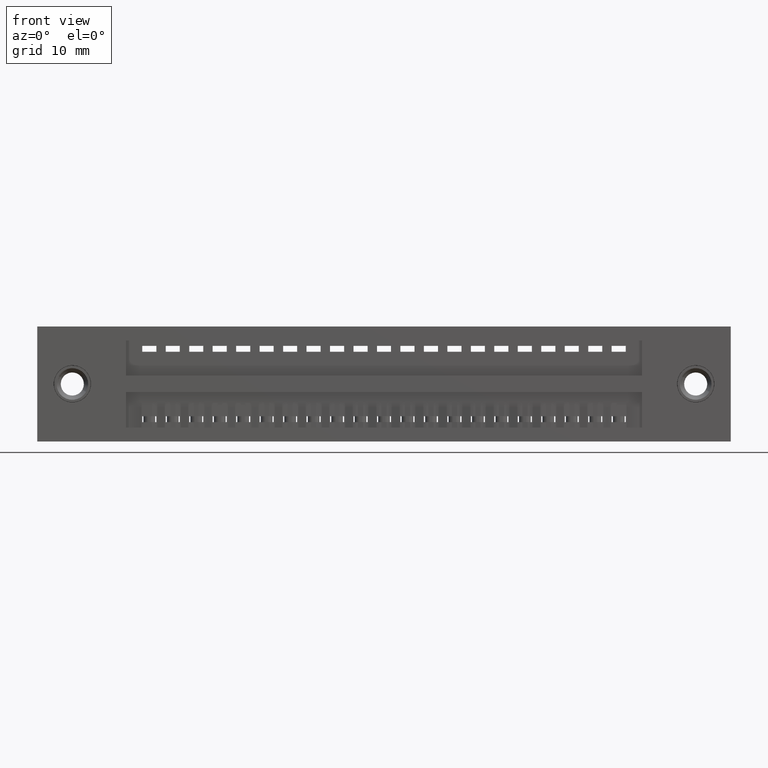
[diagram: clean part render]
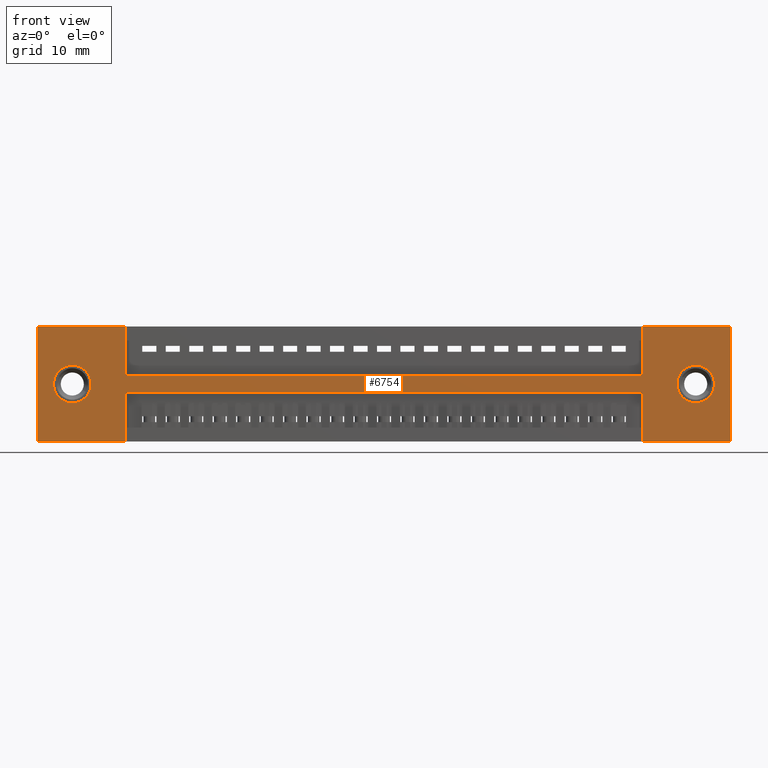
[diagram: same view with one face highlighted and labeled with its STEP entity id]
A machine part, front view. The second image highlights one B-rep face of the part: STEP entity #6754.
In plain terms, the highlighted planar face has unit normal (0, -1, 0).
Its self-contained STEP definition (entity closure, byte-faithful):
#55 = VECTOR ( 'NONE', #1335, 39.37007874015748100 ) ;
#319 = CARTESIAN_POINT ( 'NONE',  ( 0.1495000000000000500, 0.0000000000000000000, -0.1650000000000000100 ) ) ;
#337 = EDGE_CURVE ( 'NONE', #16049, #4936, #15626, .T. ) ;
#561 = DIRECTION ( 'NONE',  ( 0.0000000000000000000, 0.0000000000000000000, -1.000000000000000000 ) ) ;
#942 = CARTESIAN_POINT ( 'NONE',  ( 2.577500000000000100, 0.0000000000000000000, -0.2100000000000002100 ) ) ;
#1154 = EDGE_LOOP ( 'NONE', ( #16328, #10938 ) ) ;
#1239 = CARTESIAN_POINT ( 'NONE',  ( 0.0000000000000000000, 0.0000000000000000000, 0.0000000000000000000 ) ) ;
#1335 = DIRECTION ( 'NONE',  ( 0.0000000000000000000, 0.0000000000000000000, -1.000000000000000000 ) ) ;
#1450 = CARTESIAN_POINT ( 'NONE',  ( 0.1495000000000000500, 0.0000000000000000000, -0.2450000000000000000 ) ) ;
#1684 = VECTOR ( 'NONE', #11710, 39.37007874015748100 ) ;
#1851 = VERTEX_POINT ( 'NONE', #8721 ) ;
#1897 = EDGE_CURVE ( 'NONE', #7417, #2716, #12724, .T. ) ;
#2026 = CARTESIAN_POINT ( 'NONE',  ( 2.955000000000000100, 0.0000000000000000000, -0.4899999999999999900 ) ) ;
#2192 = ORIENTED_EDGE ( 'NONE', *, *, #8129, .F. ) ;
#2200 = VECTOR ( 'NONE', #4193, 39.37007874015748100 ) ;
#2374 = VERTEX_POINT ( 'NONE', #942 ) ;
#2387 = CARTESIAN_POINT ( 'NONE',  ( 2.577500000000000100, 0.0000000000000000000, -0.2800000000000001900 ) ) ;
#2397 = CARTESIAN_POINT ( 'NONE',  ( 0.3775000000000000000, 0.0000000000000000000, -0.2800000000000000300 ) ) ;
#2602 = CARTESIAN_POINT ( 'NONE',  ( 0.3775000000000000000, 0.0000000000000000000, -0.2800000000000000300 ) ) ;
#2681 = CARTESIAN_POINT ( 'NONE',  ( 2.577500000000000100, 0.0000000000000000000, -0.4900000000000004400 ) ) ;
#2696 = DIRECTION ( 'NONE',  ( 0.0000000000000000000, -1.000000000000000000, 0.0000000000000000000 ) ) ;
#2716 = VERTEX_POINT ( 'NONE', #2681 ) ;
#2871 = DIRECTION ( 'NONE',  ( 0.0000000000000000000, 1.000000000000000000, 0.0000000000000000000 ) ) ;
#2919 = VERTEX_POINT ( 'NONE', #2387 ) ;
#3071 = EDGE_CURVE ( 'NONE', #4383, #3575, #4844, .T. ) ;
#3080 = ORIENTED_EDGE ( 'NONE', *, *, #13910, .F. ) ;
#3138 = LINE ( 'NONE', #6038, #4954 ) ;
#3547 = CARTESIAN_POINT ( 'NONE',  ( 0.1495000000000000500, 0.0000000000000000000, -0.2450000000000000000 ) ) ;
#3554 = FACE_BOUND ( 'NONE', #6097, .T. ) ;
#3575 = VERTEX_POINT ( 'NONE', #5724 ) ;
#3949 = DIRECTION ( 'NONE',  ( -1.000000000000000000, -0.0000000000000000000, 7.760931800182566100E-017 ) ) ;
#4122 = ORIENTED_EDGE ( 'NONE', *, *, #4705, .F. ) ;
#4193 = DIRECTION ( 'NONE',  ( -3.252199992457456200E-016, -0.0000000000000000000, -1.000000000000000000 ) ) ;
#4196 = EDGE_CURVE ( 'NONE', #2919, #10600, #11426, .T. ) ;
#4350 = ORIENTED_EDGE ( 'NONE', *, *, #12881, .F. ) ;
#4383 = VERTEX_POINT ( 'NONE', #8252 ) ;
#4392 = AXIS2_PLACEMENT_3D ( 'NONE', #1450, #2871, #5458 ) ;
#4400 = DIRECTION ( 'NONE',  ( 0.0000000000000000000, 1.000000000000000000, -0.0000000000000000000 ) ) ;
#4705 = EDGE_CURVE ( 'NONE', #10984, #7308, #11406, .T. ) ;
#4844 = LINE ( 'NONE', #5372, #2200 ) ;
#4936 = VERTEX_POINT ( 'NONE', #12119 ) ;
#4954 = VECTOR ( 'NONE', #12478, 39.37007874015748100 ) ;
#4959 = CARTESIAN_POINT ( 'NONE',  ( 0.0000000000000000000, 0.0000000000000000000, -0.4899999999999999900 ) ) ;
#5012 = ORIENTED_EDGE ( 'NONE', *, *, #6157, .T. ) ;
#5091 = LINE ( 'NONE', #14435, #10296 ) ;
#5212 = AXIS2_PLACEMENT_3D ( 'NONE', #15864, #4400, #561 ) ;
#5346 = LINE ( 'NONE', #10106, #9140 ) ;
#5372 = CARTESIAN_POINT ( 'NONE',  ( 0.3775000000000000000, 0.0000000000000000000, -0.2100000000000000200 ) ) ;
#5414 = CARTESIAN_POINT ( 'NONE',  ( 0.0000000000000000000, 0.0000000000000000000, -0.4899999999999999900 ) ) ;
#5458 = DIRECTION ( 'NONE',  ( 0.0000000000000000000, 0.0000000000000000000, 1.000000000000000000 ) ) ;
#5466 = VECTOR ( 'NONE', #5535, 39.37007874015748100 ) ;
#5501 = DIRECTION ( 'NONE',  ( -0.0000000000000000000, -0.0000000000000000000, 1.000000000000000000 ) ) ;
#5535 = DIRECTION ( 'NONE',  ( -1.000000000000000000, -0.0000000000000000000, -0.0000000000000000000 ) ) ;
#5581 = EDGE_CURVE ( 'NONE', #10600, #10984, #5346, .T. ) ;
#5636 = ORIENTED_EDGE ( 'NONE', *, *, #1897, .F. ) ;
#5652 = CIRCLE ( 'NONE', #7473, 0.07999999999999996000 ) ;
#5724 = CARTESIAN_POINT ( 'NONE',  ( 0.3775000000000000000, 0.0000000000000000000, -0.2100000000000000200 ) ) ;
#6038 = CARTESIAN_POINT ( 'NONE',  ( 0.0000000000000000000, 0.0000000000000000000, 0.0000000000000000000 ) ) ;
#6080 = EDGE_CURVE ( 'NONE', #7308, #13480, #16407, .T. ) ;
#6097 = EDGE_LOOP ( 'NONE', ( #7120, #5012 ) ) ;
#6157 = EDGE_CURVE ( 'NONE', #9690, #8288, #11376, .T. ) ;
#6341 = LINE ( 'NONE', #15837, #9135 ) ;
#6406 = AXIS2_PLACEMENT_3D ( 'NONE', #6929, #11858, #8339 ) ;
#6607 = EDGE_CURVE ( 'NONE', #1851, #6694, #14765, .T. ) ;
#6694 = VERTEX_POINT ( 'NONE', #8725 ) ;
#6750 = VECTOR ( 'NONE', #7695, 39.37007874015748100 ) ;
#6754 = ADVANCED_FACE ( 'NONE', ( #8595, #3554, #14640 ), #11374, .T. ) ;
#6898 = LINE ( 'NONE', #16642, #55 ) ;
#6929 = CARTESIAN_POINT ( 'NONE',  ( 2.805500000000000300, 0.0000000000000000000, -0.2450000000000003300 ) ) ;
#7120 = ORIENTED_EDGE ( 'NONE', *, *, #15234, .T. ) ;
#7278 = AXIS2_PLACEMENT_3D ( 'NONE', #4959, #2696, #14344 ) ;
#7308 = VERTEX_POINT ( 'NONE', #5414 ) ;
#7361 = EDGE_CURVE ( 'NONE', #3575, #2374, #6341, .T. ) ;
#7417 = VERTEX_POINT ( 'NONE', #2026 ) ;
#7473 = AXIS2_PLACEMENT_3D ( 'NONE', #3547, #8558, #12481 ) ;
#7501 = LINE ( 'NONE', #11656, #1684 ) ;
#7694 = CARTESIAN_POINT ( 'NONE',  ( 2.805500000000000300, 0.0000000000000000000, -0.1650000000000000100 ) ) ;
#7695 = DIRECTION ( 'NONE',  ( -1.000000000000000000, -0.0000000000000000000, -0.0000000000000000000 ) ) ;
#7728 = VECTOR ( 'NONE', #11605, 39.37007874015748100 ) ;
#7870 = CIRCLE ( 'NONE', #6406, 0.08000000000000030700 ) ;
#7952 = ORIENTED_EDGE ( 'NONE', *, *, #5581, .F. ) ;
#8092 = CARTESIAN_POINT ( 'NONE',  ( 0.0000000000000000000, 0.0000000000000000000, -0.4899999999999999900 ) ) ;
#8129 = EDGE_CURVE ( 'NONE', #6694, #7417, #6898, .T. ) ;
#8252 = CARTESIAN_POINT ( 'NONE',  ( 0.3775000000000000600, 0.0000000000000000000, 0.0000000000000000000 ) ) ;
#8288 = VERTEX_POINT ( 'NONE', #319 ) ;
#8339 = DIRECTION ( 'NONE',  ( 0.0000000000000000000, 0.0000000000000000000, -1.000000000000000000 ) ) ;
#8442 = ORIENTED_EDGE ( 'NONE', *, *, #7361, .F. ) ;
#8558 = DIRECTION ( 'NONE',  ( 0.0000000000000000000, 1.000000000000000000, 0.0000000000000000000 ) ) ;
#8595 = FACE_BOUND ( 'NONE', #1154, .T. ) ;
#8721 = CARTESIAN_POINT ( 'NONE',  ( 2.577500000000000100, 0.0000000000000000000, 0.0000000000000000000 ) ) ;
#8725 = CARTESIAN_POINT ( 'NONE',  ( 2.955000000000000100, 0.0000000000000000000, 0.0000000000000000000 ) ) ;
#8838 = ORIENTED_EDGE ( 'NONE', *, *, #6080, .F. ) ;
#9135 = VECTOR ( 'NONE', #9919, 39.37007874015748100 ) ;
#9140 = VECTOR ( 'NONE', #13128, 39.37007874015748100 ) ;
#9605 = CARTESIAN_POINT ( 'NONE',  ( 0.0000000000000000000, 0.0000000000000000000, 0.0000000000000000000 ) ) ;
#9690 = VERTEX_POINT ( 'NONE', #9734 ) ;
#9734 = CARTESIAN_POINT ( 'NONE',  ( 0.1495000000000000800, 0.0000000000000000000, -0.3249999999999999600 ) ) ;
#9919 = DIRECTION ( 'NONE',  ( 1.000000000000000000, 0.0000000000000000000, -9.313118160219080300E-017 ) ) ;
#9937 = EDGE_LOOP ( 'NONE', ( #3080, #8442, #11022, #4350, #8838, #4122, #7952, #11084, #12795, #5636, #2192, #11769 ) ) ;
#10106 = CARTESIAN_POINT ( 'NONE',  ( 0.3775000000000000000, 0.0000000000000000000, -0.2800000000000000300 ) ) ;
#10296 = VECTOR ( 'NONE', #5501, 39.37007874015748100 ) ;
#10600 = VERTEX_POINT ( 'NONE', #2397 ) ;
#10938 = ORIENTED_EDGE ( 'NONE', *, *, #15026, .T. ) ;
#10984 = VERTEX_POINT ( 'NONE', #12214 ) ;
#11022 = ORIENTED_EDGE ( 'NONE', *, *, #3071, .F. ) ;
#11084 = ORIENTED_EDGE ( 'NONE', *, *, #4196, .F. ) ;
#11374 = PLANE ( 'NONE',  #7278 ) ;
#11376 = CIRCLE ( 'NONE', #4392, 0.07999999999999996000 ) ;
#11406 = LINE ( 'NONE', #8092, #6750 ) ;
#11426 = LINE ( 'NONE', #2602, #15831 ) ;
#11605 = DIRECTION ( 'NONE',  ( -0.0000000000000000000, -0.0000000000000000000, 1.000000000000000000 ) ) ;
#11656 = CARTESIAN_POINT ( 'NONE',  ( 2.577500000000000100, 0.0000000000000000000, -0.2100000000000002100 ) ) ;
#11710 = DIRECTION ( 'NONE',  ( 0.0000000000000000000, 0.0000000000000000000, 1.000000000000000000 ) ) ;
#11769 = ORIENTED_EDGE ( 'NONE', *, *, #6607, .F. ) ;
#11858 = DIRECTION ( 'NONE',  ( 0.0000000000000000000, 1.000000000000000000, -0.0000000000000000000 ) ) ;
#12119 = CARTESIAN_POINT ( 'NONE',  ( 2.805500000000000300, 0.0000000000000000000, -0.3250000000000006200 ) ) ;
#12192 = VECTOR ( 'NONE', #12942, 39.37007874015748100 ) ;
#12214 = CARTESIAN_POINT ( 'NONE',  ( 0.3775000000000000600, 0.0000000000000000000, -0.4900000000000000500 ) ) ;
#12478 = DIRECTION ( 'NONE',  ( 1.000000000000000000, 0.0000000000000000000, 0.0000000000000000000 ) ) ;
#12481 = DIRECTION ( 'NONE',  ( 0.0000000000000000000, 0.0000000000000000000, 1.000000000000000000 ) ) ;
#12649 = CARTESIAN_POINT ( 'NONE',  ( 0.0000000000000000000, 0.0000000000000000000, -0.4899999999999999900 ) ) ;
#12724 = LINE ( 'NONE', #12649, #5466 ) ;
#12795 = ORIENTED_EDGE ( 'NONE', *, *, #14438, .F. ) ;
#12881 = EDGE_CURVE ( 'NONE', #13480, #4383, #3138, .T. ) ;
#12942 = DIRECTION ( 'NONE',  ( 1.000000000000000000, 0.0000000000000000000, 0.0000000000000000000 ) ) ;
#13128 = DIRECTION ( 'NONE',  ( 3.252199992457456200E-016, 0.0000000000000000000, -1.000000000000000000 ) ) ;
#13480 = VERTEX_POINT ( 'NONE', #9605 ) ;
#13910 = EDGE_CURVE ( 'NONE', #2374, #1851, #7501, .T. ) ;
#14344 = DIRECTION ( 'NONE',  ( 0.0000000000000000000, -0.0000000000000000000, -1.000000000000000000 ) ) ;
#14435 = CARTESIAN_POINT ( 'NONE',  ( 2.577500000000000100, 0.0000000000000000000, -0.2800000000000001900 ) ) ;
#14438 = EDGE_CURVE ( 'NONE', #2716, #2919, #5091, .T. ) ;
#14640 = FACE_OUTER_BOUND ( 'NONE', #9937, .T. ) ;
#14765 = LINE ( 'NONE', #16639, #12192 ) ;
#15026 = EDGE_CURVE ( 'NONE', #4936, #16049, #7870, .T. ) ;
#15234 = EDGE_CURVE ( 'NONE', #8288, #9690, #5652, .T. ) ;
#15626 = CIRCLE ( 'NONE', #5212, 0.08000000000000030700 ) ;
#15831 = VECTOR ( 'NONE', #3949, 39.37007874015748100 ) ;
#15837 = CARTESIAN_POINT ( 'NONE',  ( 0.3775000000000000000, 0.0000000000000000000, -0.2100000000000000200 ) ) ;
#15864 = CARTESIAN_POINT ( 'NONE',  ( 2.805500000000000300, 0.0000000000000000000, -0.2450000000000003300 ) ) ;
#16049 = VERTEX_POINT ( 'NONE', #7694 ) ;
#16328 = ORIENTED_EDGE ( 'NONE', *, *, #337, .T. ) ;
#16407 = LINE ( 'NONE', #1239, #7728 ) ;
#16639 = CARTESIAN_POINT ( 'NONE',  ( 0.0000000000000000000, 0.0000000000000000000, 0.0000000000000000000 ) ) ;
#16642 = CARTESIAN_POINT ( 'NONE',  ( 2.955000000000000100, 0.0000000000000000000, 0.0000000000000000000 ) ) ;